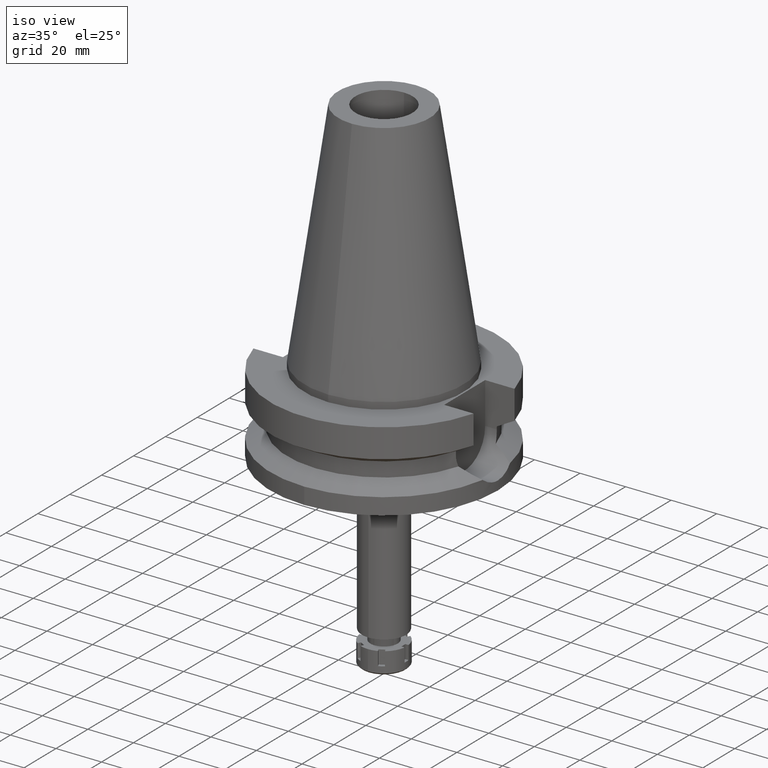
[diagram: clean part render]
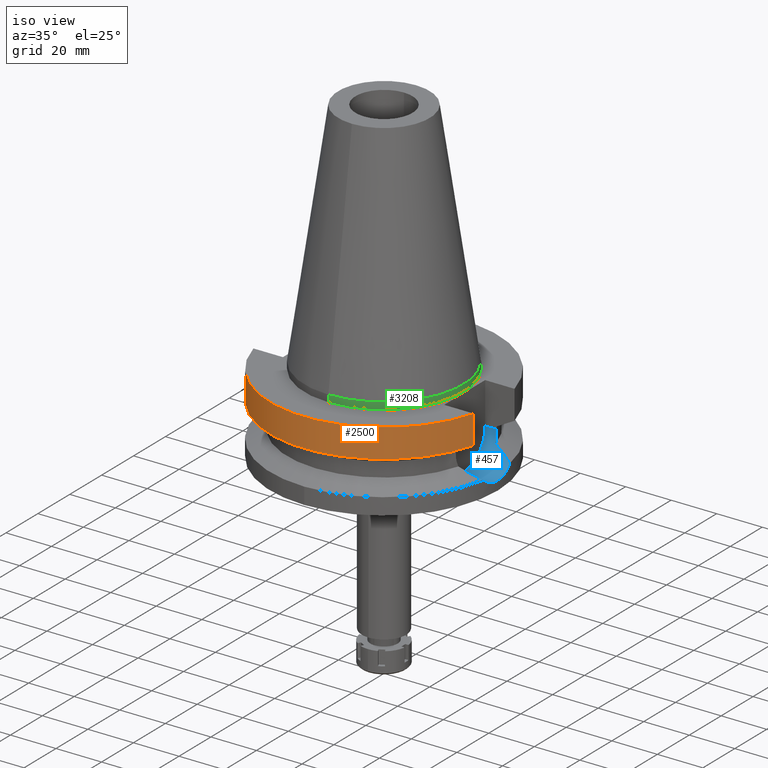
[diagram: same view with three faces highlighted in distinct colors, each labeled with its STEP entity id]
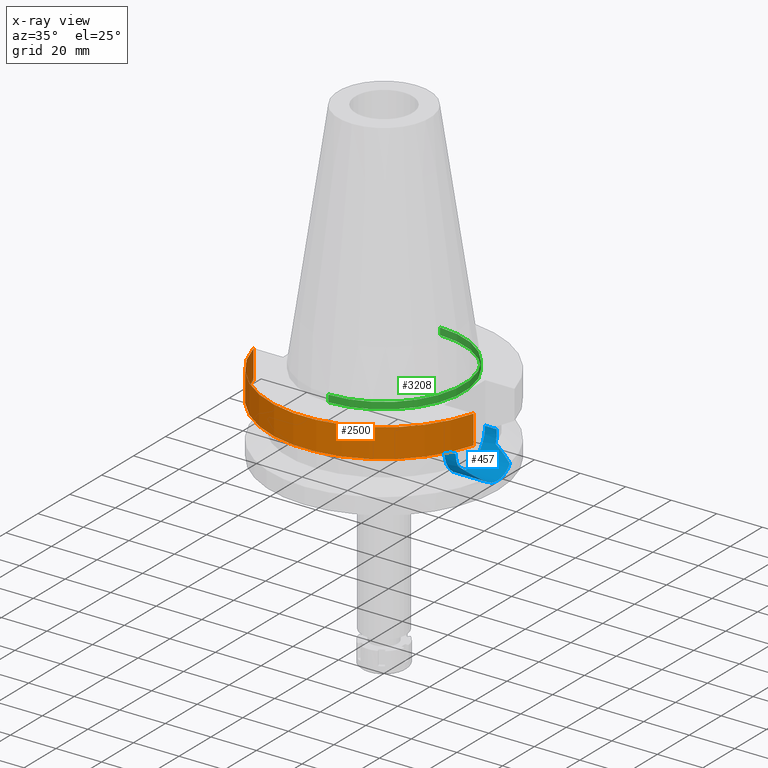
[diagram: x-ray of the same camera — body ghosted, the three highlighted faces saturated]
A machine part, iso view with three faces highlighted in distinct colors.
The next image is the same camera in x-ray (body ghosted, the three faces saturated) — at least one of them is partly hidden behind the body in this view.
Their STEP definitions:

[orange] entity #2500 — the highlighted cylindrical surface (partial cylindrical patch) has radius 50 mm, axis along (0, 0, -1).
#61 = DIRECTION ( 'NONE',  ( 0.0000000000000000000, 0.0000000000000000000, -1.000000000000000000 ) ) ;
#110 = DIRECTION ( 'NONE',  ( 0.0000000000000000000, 0.0000000000000000000, 1.000000000000000000 ) ) ;
#154 = DIRECTION ( 'NONE',  ( 0.0000000000000000000, -1.000000000000000000, 0.0000000000000000000 ) ) ;
#156 = ORIENTED_EDGE ( 'NONE', *, *, #3492, .F. ) ;
#261 = AXIS2_PLACEMENT_3D ( 'NONE', #695, #2713, #154 ) ;
#265 = VECTOR ( 'NONE', #2087, 1000.000000000000114 ) ;
#382 = AXIS2_PLACEMENT_3D ( 'NONE', #1761, #61, #2266 ) ;
#408 = LINE ( 'NONE', #3521, #265 ) ;
#442 = EDGE_LOOP ( 'NONE', ( #156, #3562, #3086, #3106 ) ) ;
#513 = LINE ( 'NONE', #3007, #3203 ) ;
#695 = CARTESIAN_POINT ( 'NONE',  ( 0.0000000000000000000, 2.604088953706999655E-14, 112.6400000000000006 ) ) ;
#818 = CARTESIAN_POINT ( 'NONE',  ( 48.32057015392000210, -12.84999999999999964, -3.000000000000000000 ) ) ;
#1240 = DIRECTION ( 'NONE',  ( 0.0000000000000000000, -1.000000000000000000, 0.0000000000000000000 ) ) ;
#1273 = EDGE_CURVE ( 'NONE', #2715, #2006, #3607, .T. ) ;
#1327 = VERTEX_POINT ( 'NONE', #2423 ) ;
#1574 = FACE_OUTER_BOUND ( 'NONE', #442, .T. ) ;
#1761 = CARTESIAN_POINT ( 'NONE',  ( 0.0000000000000000000, 2.604088953706999655E-14, -3.000000000000000000 ) ) ;
#1816 = EDGE_CURVE ( 'NONE', #1912, #1327, #3672, .T. ) ;
#1912 = VERTEX_POINT ( 'NONE', #3519 ) ;
#2006 = VERTEX_POINT ( 'NONE', #2962 ) ;
#2058 = AXIS2_PLACEMENT_3D ( 'NONE', #3213, #110, #1240 ) ;
#2087 = DIRECTION ( 'NONE',  ( -8.097142945782603154E-08, 3.044811740182851726E-07, 0.9999999999999503730 ) ) ;
#2266 = DIRECTION ( 'NONE',  ( 0.0000000000000000000, -1.000000000000000000, 0.0000000000000000000 ) ) ;
#2423 = CARTESIAN_POINT ( 'NONE',  ( 48.32057015392000210, -12.84999999999999964, -15.66269223573000069 ) ) ;
#2500 = ADVANCED_FACE ( 'NONE', ( #1574 ), #3264, .T. ) ;
#2713 = DIRECTION ( 'NONE',  ( 0.0000000000000000000, 0.0000000000000000000, -1.000000000000000000 ) ) ;
#2715 = VERTEX_POINT ( 'NONE', #818 ) ;
#2728 = DIRECTION ( 'NONE',  ( -8.098196138034604414E-08, -3.045207781488850917E-07, -0.9999999999999503730 ) ) ;
#2962 = CARTESIAN_POINT ( 'NONE',  ( -48.32057015392000210, -12.84999999999999964, -3.000000000000000000 ) ) ;
#3007 = CARTESIAN_POINT ( 'NONE',  ( 48.32057015392000210, -12.84999999999999964, -3.000000000000000000 ) ) ;
#3086 = ORIENTED_EDGE ( 'NONE', *, *, #3144, .F. ) ;
#3106 = ORIENTED_EDGE ( 'NONE', *, *, #1273, .T. ) ;
#3144 = EDGE_CURVE ( 'NONE', #2715, #1327, #513, .T. ) ;
#3203 = VECTOR ( 'NONE', #2728, 1000.000000000000114 ) ;
#3213 = CARTESIAN_POINT ( 'NONE',  ( 0.0000000000000000000, 1.006319759053999930E-14, -15.66269223573000069 ) ) ;
#3264 = CYLINDRICAL_SURFACE ( 'NONE', #261, 50.00000000000000000 ) ;
#3492 = EDGE_CURVE ( 'NONE', #1912, #2006, #408, .T. ) ;
#3519 = CARTESIAN_POINT ( 'NONE',  ( -48.32056912861000342, -12.85000385554000069, -15.66265769811000119 ) ) ;
#3521 = CARTESIAN_POINT ( 'NONE',  ( -48.32056912861000342, -12.85000385554000069, -15.66265769811000119 ) ) ;
#3562 = ORIENTED_EDGE ( 'NONE', *, *, #1816, .T. ) ;
#3607 = CIRCLE ( 'NONE', #382, 50.00000000000000000 ) ;
#3672 = CIRCLE ( 'NONE', #2058, 50.00000000000000000 ) ;

[blue] entity #457 — the highlighted cylindrical surface (edge-blend (fillet) strip) has radius 12.85 mm, axis along (1, 0, 0).
#3 = VERTEX_POINT ( 'NONE', #3648 ) ;
#95 = CARTESIAN_POINT ( 'NONE',  ( 40.60092238249551855, 12.56264134812847999, -23.85247231207546292 ) ) ;
#165 = CARTESIAN_POINT ( 'NONE',  ( 40.73816527417317701, -12.11683760438691948, -25.53409260248793800 ) ) ;
#181 = CARTESIAN_POINT ( 'NONE',  ( 40.59544233053302520, -12.58034074061086294, -23.76884316745783465 ) ) ;
#240 = CARTESIAN_POINT ( 'NONE',  ( 42.56130864140957470, -11.29643904426557377, -27.29251094088017027 ) ) ;
#256 = B_SPLINE_CURVE_WITH_KNOTS ( 'NONE', 3,
 ( #1215, #1236, #2065, #3224, #656, #1806, #901, #1729, #301, #2373, #2008, #3149, #3207, #2026, #2867, #598 ),
 .UNSPECIFIED., .F., .F.,
 ( 4, 2, 2, 1, 1, 1, 1, 2, 2, 4 ),
 ( 0.0000000000000000000, 0.2499999999999733546, 0.3749999999999591438, 0.4374999999999528710, 0.4687499999999489297, 0.4843749999999477640, 0.4921874999999479861, 0.4960937499999479861, 0.4999999999999480416, 1.000000000000000000 ),
 .UNSPECIFIED. ) ;
#263 = CARTESIAN_POINT ( 'NONE',  ( 49.38718097020832687, 7.838190275245236371, -31.37795314336242569 ) ) ;
#301 = CARTESIAN_POINT ( 'NONE',  ( 45.44735433290657056, 10.34016909767419179, -28.77921800161297838 ) ) ;
#325 = CARTESIAN_POINT ( 'NONE',  ( 40.51083188481999997, -12.84999999999999964, -21.14999999999999858 ) ) ;
#362 = DIRECTION ( 'NONE',  ( 1.000000000000000000, -3.336643826789999529E-14, 0.0000000000000000000 ) ) ;
#366 = CARTESIAN_POINT ( 'NONE',  ( 49.71768875269584242, -5.301942241656695920, -32.85649167150086214 ) ) ;
#381 = DIRECTION ( 'NONE',  ( -1.000000000000000000, -3.510427359434999885E-14, 0.0000000000000000000 ) ) ;
#421 = CARTESIAN_POINT ( 'NONE',  ( 40.54024919018342388, 12.75863389424604399, -22.93144383469273251 ) ) ;
#426 = VERTEX_POINT ( 'NONE', #3261 ) ;
#447 = CARTESIAN_POINT ( 'NONE',  ( 40.57495769630776294, -12.64634707790186319, -23.43364513697129325 ) ) ;
#451 = CYLINDRICAL_SURFACE ( 'NONE', #1202, 12.85000000000000320 ) ;
#455 = ORIENTED_EDGE ( 'NONE', *, *, #2313, .F. ) ;
#457 = ADVANCED_FACE ( 'NONE', ( #3580 ), #451, .F. ) ;
#476 = CARTESIAN_POINT ( 'NONE',  ( 40.51818681660353860, -12.82722334132538577, -22.03684727484449368 ) ) ;
#496 = CARTESIAN_POINT ( 'NONE',  ( 40.58662215843323651, -12.60879279856068003, -23.62921822474166689 ) ) ;
#505 = CARTESIAN_POINT ( 'NONE',  ( 49.26250064874000145, -8.556052234130000045, -30.73730776426999967 ) ) ;
#520 = CARTESIAN_POINT ( 'NONE',  ( 45.49671133691751379, -10.32122249077030673, -28.80474141475825789 ) ) ;
#564 = CARTESIAN_POINT ( 'NONE',  ( 49.26250064874000145, 8.556052234130000045, -30.73730776426999967 ) ) ;
#579 = B_SPLINE_CURVE_WITH_KNOTS ( 'NONE', 3,
 ( #2418, #699, #682, #2670, #1832, #366, #943, #2951, #3571, #2649, #1512, #1548, #1535, #2686, #2916, #928, #1257, #2394, #3554, #975 ),
 .UNSPECIFIED., .F., .F.,
 ( 4, 2, 2, 2, 1, 1, 1, 1, 2, 2, 2, 4 ),
 ( 0.0000000000000000000, 0.2499999999999993894, 0.3749999999999998335, 0.4375000000000002776, 0.4687499999999999445, 0.4843749999999998890, 0.4921874999999999445, 0.4960937500000001665, 0.4980468750000001665, 0.5000000000000001110, 0.7500000000000001110, 1.000000000000000000 ),
 .UNSPECIFIED. ) ;
#598 = CARTESIAN_POINT ( 'NONE',  ( 40.85052569294000335, 11.72538061688000077, -26.40718074535000426 ) ) ;
#607 = CARTESIAN_POINT ( 'NONE',  ( 35.39999999999999858, 0.0000000000000000000, -21.14999999999999858 ) ) ;
#632 = CARTESIAN_POINT ( 'NONE',  ( 40.51083188481999287, 12.84999999999999609, -22.03305700494631836 ) ) ;
#646 = ORIENTED_EDGE ( 'NONE', *, *, #1920, .T. ) ;
#650 = ORIENTED_EDGE ( 'NONE', *, *, #2299, .F. ) ;
#656 = CARTESIAN_POINT ( 'NONE',  ( 46.73490844438281044, 9.820097952442347733, -29.44115876246852181 ) ) ;
#663 = CARTESIAN_POINT ( 'NONE',  ( 40.66327158123674224, 12.35978760538091414, -24.67233268305698246 ) ) ;
#682 = CARTESIAN_POINT ( 'NONE',  ( 49.49359291796877613, -7.117121549473845121, -31.87762897366440384 ) ) ;
#699 = CARTESIAN_POINT ( 'NONE',  ( 49.38718395754584378, -7.838173075249422084, -31.37796849324647752 ) ) ;
#766 = ORIENTED_EDGE ( 'NONE', *, *, #3174, .T. ) ;
#780 = CARTESIAN_POINT ( 'NONE',  ( 43.72836978577122835, -10.94021176275651008, -27.89452633777601065 ) ) ;
#791 = CARTESIAN_POINT ( 'NONE',  ( 40.56599387319658234, -12.67510252611517352, -23.26591392763370081 ) ) ;
#804 = CARTESIAN_POINT ( 'NONE',  ( 49.82076548536139882, 4.230355037866759815, -33.28443577065276315 ) ) ;
#862 = CARTESIAN_POINT ( 'NONE',  ( 40.51083188481999997, -12.84999999999999964, -21.14999999999999858 ) ) ;
#901 = CARTESIAN_POINT ( 'NONE',  ( 45.93314006642722092, 10.15221397019499250, -29.02906863876473409 ) ) ;
#928 = CARTESIAN_POINT ( 'NONE',  ( 49.86087221398668134, -3.802572501921722026, -33.45144442938796203 ) ) ;
#943 = CARTESIAN_POINT ( 'NONE',  ( 49.73401167183619265, -5.148629039070319102, -32.92456578347048435 ) ) ;
#945 = CARTESIAN_POINT ( 'NONE',  ( 40.79434512280163005, 11.92111036748542041, -25.97063387069337637 ) ) ;
#975 = CARTESIAN_POINT ( 'NONE',  ( 50.00000000000000000, 1.761287026533999918E-14, -34.00000000000000000 ) ) ;
#982 = CARTESIAN_POINT ( 'NONE',  ( 50.00000000000000000, 1.761287026533999918E-14, -34.00000000000000000 ) ) ;
#1000 = VERTEX_POINT ( 'NONE', #325 ) ;
#1056 = CARTESIAN_POINT ( 'NONE',  ( 49.79506804257010799, 4.522212035697184440, -33.17798325146792138 ) ) ;
#1081 = CARTESIAN_POINT ( 'NONE',  ( 40.85052569294000335, 11.72538061688000077, -26.40718074535000426 ) ) ;
#1095 = CARTESIAN_POINT ( 'NONE',  ( 50.00000000000001421, 0.7411266723672517154, -34.00000000000001421 ) ) ;
#1117 = DIRECTION ( 'NONE',  ( -1.000000000000000000, 0.0000000000000000000, 0.0000000000000000000 ) ) ;
#1186 = B_SPLINE_CURVE_WITH_KNOTS ( 'NONE', 3,
 ( #2875, #945, #1780, #2104, #663, #1201, #3501, #2631, #2672, #2364, #95, #421, #632, #2343 ),
 .UNSPECIFIED., .F., .F.,
 ( 4, 2, 2, 1, 1, 2, 2, 4 ),
 ( 0.0000000000000000000, 0.2499999999999975575, 0.3749999999999956146, 0.4374999999999937272, 0.4687499999999938938, 0.4843749999999932276, 0.4999999999999925615, 1.000000000000000000 ),
 .UNSPECIFIED. ) ;
#1201 = CARTESIAN_POINT ( 'NONE',  ( 40.63719394028306908, 12.44501252797420676, -24.35255093224603229 ) ) ;
#1202 = AXIS2_PLACEMENT_3D ( 'NONE', #2147, #3293, #1592 ) ;
#1215 = CARTESIAN_POINT ( 'NONE',  ( 49.26250064874000145, 8.556052234130000045, -30.73730776426999967 ) ) ;
#1236 = CARTESIAN_POINT ( 'NONE',  ( 48.69047850290822055, 8.884316265751099451, -30.44435334263351223 ) ) ;
#1257 = CARTESIAN_POINT ( 'NONE',  ( 49.91304513374167584, -3.031454505763369056, -33.66148971129195644 ) ) ;
#1329 = VECTOR ( 'NONE', #362, 1000.000000000000000 ) ;
#1343 = CARTESIAN_POINT ( 'NONE',  ( 49.79344695708954305, 4.540054226090951772, -33.17124985379826541 ) ) ;
#1358 = VERTEX_POINT ( 'NONE', #982 ) ;
#1360 = CARTESIAN_POINT ( 'NONE',  ( 44.10449838200392492, -10.81816513385359357, -28.08832101591415764 ) ) ;
#1382 = CARTESIAN_POINT ( 'NONE',  ( 49.79236411020666253, 4.551947763954749426, -33.16675130713447572 ) ) ;
#1422 = CARTESIAN_POINT ( 'NONE',  ( 41.73170073761713894, -11.52074671212583645, -26.86358704686269405 ) ) ;
#1466 = LINE ( 'NONE', #862, #2410 ) ;
#1495 = VERTEX_POINT ( 'NONE', #3377 ) ;
#1512 = CARTESIAN_POINT ( 'NONE',  ( 49.78560365034522306, -4.625461934449639045, -33.13867112587748665 ) ) ;
#1529 = LINE ( 'NONE', #3491, #1329 ) ;
#1535 = CARTESIAN_POINT ( 'NONE',  ( 49.78969068423913313, -4.581164179001000925, -33.15564271947433639 ) ) ;
#1548 = CARTESIAN_POINT ( 'NONE',  ( 49.78847160095052260, -4.594427208010531949, -33.15057897142614252 ) ) ;
#1578 = AXIS2_PLACEMENT_3D ( 'NONE', #607, #1117, #2321 ) ;
#1588 = CARTESIAN_POINT ( 'NONE',  ( 40.65435373193400181, -12.39003581045331792, -24.66356197803972350 ) ) ;
#1592 = DIRECTION ( 'NONE',  ( 0.0000000000000000000, 0.0000000000000000000, -1.000000000000000000 ) ) ;
#1640 = CARTESIAN_POINT ( 'NONE',  ( 40.51083188481999997, -12.84999999999999964, -21.14999999999999858 ) ) ;
#1668 = CARTESIAN_POINT ( 'NONE',  ( 45.47653825677937789, -10.32890838093382335, -28.79436624111400178 ) ) ;
#1673 = EDGE_CURVE ( 'NONE', #1495, #3, #1932, .T. ) ;
#1689 = CARTESIAN_POINT ( 'NONE',  ( 50.00000000000000000, 1.761287026533999918E-14, -34.00000000000000000 ) ) ;
#1729 = CARTESIAN_POINT ( 'NONE',  ( 45.61053032543964747, 10.27793765900630163, -28.86315270907437736 ) ) ;
#1780 = CARTESIAN_POINT ( 'NONE',  ( 40.74530134672995985, 12.08735857047098960, -25.53452462534196954 ) ) ;
#1806 = CARTESIAN_POINT ( 'NONE',  ( 46.20324742599608214, 10.04236694129538066, -29.16792682502047285 ) ) ;
#1832 = CARTESIAN_POINT ( 'NONE',  ( 49.66529355495303832, -5.772644196052398868, -32.63560987239748812 ) ) ;
#1867 = CARTESIAN_POINT ( 'NONE',  ( 40.54944527668359200, -12.72806992640919255, -22.93044913861063705 ) ) ;
#1920 = EDGE_CURVE ( 'NONE', #3297, #1358, #579, .T. ) ;
#1930 = CARTESIAN_POINT ( 'NONE',  ( 40.85052569294000335, -11.72538061688000077, -26.40718074535000426 ) ) ;
#1932 = CIRCLE ( 'NONE', #1578, 12.84999999999999964 ) ;
#1966 = CARTESIAN_POINT ( 'NONE',  ( 45.43415516756414974, -10.34500555249046627, -28.77256805079166924 ) ) ;
#2008 = CARTESIAN_POINT ( 'NONE',  ( 45.33003155597393175, 10.38435624674453450, -28.71886394406518050 ) ) ;
#2026 = CARTESIAN_POINT ( 'NONE',  ( 43.99276756884930961, 10.88338489623259342, -28.03089659096281849 ) ) ;
#2065 = CARTESIAN_POINT ( 'NONE',  ( 48.07283661973739441, 9.204940229188441236, -30.12791399234582457 ) ) ;
#2104 = CARTESIAN_POINT ( 'NONE',  ( 40.68244087372254825, 12.29668167644063281, -24.88705339788334570 ) ) ;
#2146 = ORIENTED_EDGE ( 'NONE', *, *, #2389, .T. ) ;
#2147 = CARTESIAN_POINT ( 'NONE',  ( 35.39999999999999858, 0.0000000000000000000, -21.14999999999999858 ) ) ;
#2171 = EDGE_CURVE ( 'NONE', #426, #3297, #3391, .T. ) ;
#2189 = EDGE_CURVE ( 'NONE', #1358, #2697, #2719, .T. ) ;
#2202 = CARTESIAN_POINT ( 'NONE',  ( 49.79168103802513912, 4.559431696508561949, -33.16391296943704248 ) ) ;
#2214 = CARTESIAN_POINT ( 'NONE',  ( 49.26250064874000145, 8.556052234130000045, -30.73730776426999967 ) ) ;
#2218 = CARTESIAN_POINT ( 'NONE',  ( 49.86954879904999416, 3.608421990874670193, -33.48456028788707073 ) ) ;
#2275 = CARTESIAN_POINT ( 'NONE',  ( 49.79882828145165519, 4.480567247226063365, -33.19359360190872366 ) ) ;
#2299 = EDGE_CURVE ( 'NONE', #1000, #3, #1466, .T. ) ;
#2313 = EDGE_CURVE ( 'NONE', #1495, #2370, #1529, .T. ) ;
#2321 = DIRECTION ( 'NONE',  ( 0.0000000000000000000, 1.000000000000000000, 0.0000000000000000000 ) ) ;
#2343 = CARTESIAN_POINT ( 'NONE',  ( 40.51083188481999997, 12.84999999999999964, -21.14999999999999858 ) ) ;
#2364 = CARTESIAN_POINT ( 'NONE',  ( 40.60256585324605538, 12.55733039764032277, -23.87702712887113421 ) ) ;
#2370 = VERTEX_POINT ( 'NONE', #2642 ) ;
#2373 = CARTESIAN_POINT ( 'NONE',  ( 45.36529855613019180, 10.37112438074890441, -28.73700672778409171 ) ) ;
#2389 = EDGE_CURVE ( 'NONE', #2697, #3318, #256, .T. ) ;
#2394 = CARTESIAN_POINT ( 'NONE',  ( 49.98260902674834938, -1.500717388191710633, -33.93573183423836781 ) ) ;
#2404 = ORIENTED_EDGE ( 'NONE', *, *, #2189, .T. ) ;
#2410 = VECTOR ( 'NONE', #381, 1000.000000000000000 ) ;
#2418 = CARTESIAN_POINT ( 'NONE',  ( 49.26250064874000145, -8.556052234130000045, -30.73730776426999967 ) ) ;
#2479 = CARTESIAN_POINT ( 'NONE',  ( 40.85052569294000335, -11.72538061688000077, -26.40718074535000426 ) ) ;
#2501 = CARTESIAN_POINT ( 'NONE',  ( 49.90868415933501012, 3.033014601740712912, -33.64326496415661438 ) ) ;
#2538 = B_SPLINE_CURVE_WITH_KNOTS ( 'NONE', 3,
 ( #1640, #2782, #476, #3641, #1867, #791, #447, #496, #3310, #181, #3610, #1588, #165, #2479 ),
 .UNSPECIFIED., .F., .F.,
 ( 4, 2, 2, 1, 1, 2, 2, 4 ),
 ( 0.0000000000000000000, 0.2500000000000049960, 0.3750000000000074940, 0.4375000000000087708, 0.4687500000000102141, 0.4843750000000111022, 0.5000000000000121014, 1.000000000000000000 ),
 .UNSPECIFIED. ) ;
#2564 = CARTESIAN_POINT ( 'NONE',  ( 44.91694678732193324, -10.53684964519682232, -28.50652834638415811 ) ) ;
#2631 = CARTESIAN_POINT ( 'NONE',  ( 40.61156370415461936, 12.52823179346066773, -24.00849701691654303 ) ) ;
#2642 = CARTESIAN_POINT ( 'NONE',  ( 40.51083188481999997, 12.84999999999999964, -21.14999999999999858 ) ) ;
#2649 = CARTESIAN_POINT ( 'NONE',  ( 49.77977405740698202, -4.687880468187646699, -33.11448302222295581 ) ) ;
#2670 = CARTESIAN_POINT ( 'NONE',  ( 49.62579483602875996, -6.100868771125520951, -32.46614492104765048 ) ) ;
#2672 = CARTESIAN_POINT ( 'NONE',  ( 40.60613153988730062, 12.54580241304220145, -23.92958009238902761 ) ) ;
#2686 = CARTESIAN_POINT ( 'NONE',  ( 49.79050117567612688, -4.572330526445521848, -33.15900978014269640 ) ) ;
#2697 = VERTEX_POINT ( 'NONE', #2214 ) ;
#2719 = B_SPLINE_CURVE_WITH_KNOTS ( 'NONE', 3,
 ( #1689, #1095, #2830, #3125, #2501, #2218, #3368, #804, #2808, #2275, #1056, #1343, #1382, #2202, #3674, #3104, #3347, #263, #564 ),
 .UNSPECIFIED., .F., .F.,
 ( 4, 2, 2, 1, 1, 1, 1, 1, 2, 2, 2, 4 ),
 ( 0.0000000000000000000, 0.2500000000000335287, 0.3750000000000504041, 0.4375000000000591194, 0.4687500000000634492, 0.4843750000000655032, 0.4921875000000667799, 0.4960937500000672240, 0.4980468750000671130, 0.5000000000000670575, 0.7500000000000335287, 1.000000000000000000 ),
 .UNSPECIFIED. ) ;
#2782 = CARTESIAN_POINT ( 'NONE',  ( 40.51083188481999997, -12.85000000000000142, -21.59153118651267889 ) ) ;
#2791 = CARTESIAN_POINT ( 'NONE',  ( 45.22067860687135976, -10.42525781198407309, -28.66276964885196321 ) ) ;
#2808 = CARTESIAN_POINT ( 'NONE',  ( 49.80625958358908889, 4.397227018187909842, -33.22441102720962647 ) ) ;
#2830 = CARTESIAN_POINT ( 'NONE',  ( 49.98260650653999448, 1.500770204184959988, -33.93572921280508581 ) ) ;
#2863 = ORIENTED_EDGE ( 'NONE', *, *, #2171, .T. ) ;
#2867 = CARTESIAN_POINT ( 'NONE',  ( 42.51529915793576464, 11.33877287449361404, -27.26945334895615503 ) ) ;
#2875 = CARTESIAN_POINT ( 'NONE',  ( 40.85052569294000335, 11.72538061688000077, -26.40718074535000426 ) ) ;
#2898 = CARTESIAN_POINT ( 'NONE',  ( 49.26250064874000145, -8.556052234130000045, -30.73730776426999967 ) ) ;
#2916 = CARTESIAN_POINT ( 'NONE',  ( 49.79076485306589461, -4.569454252982713349, -33.16010525646407814 ) ) ;
#2951 = CARTESIAN_POINT ( 'NONE',  ( 49.75678283038579508, -4.924618298322599230, -33.01917034626406178 ) ) ;
#2991 = ORIENTED_EDGE ( 'NONE', *, *, #3454, .T. ) ;
#3067 = CARTESIAN_POINT ( 'NONE',  ( 45.37042945813323769, -10.36912904241573230, -28.73979270271323117 ) ) ;
#3087 = CARTESIAN_POINT ( 'NONE',  ( 44.64935359852122332, -10.63126117726524988, -28.36882328545124565 ) ) ;
#3102 = EDGE_LOOP ( 'NONE', ( #2146, #2991, #455, #3136, #650, #766, #2863, #646, #2404 ) ) ;
#3104 = CARTESIAN_POINT ( 'NONE',  ( 49.66984506000081012, 5.762278796073894149, -32.66223234248890606 ) ) ;
#3125 = CARTESIAN_POINT ( 'NONE',  ( 49.93042602616001346, 2.648908124987692236, -33.73002211534664241 ) ) ;
#3136 = ORIENTED_EDGE ( 'NONE', *, *, #1673, .T. ) ;
#3149 = CARTESIAN_POINT ( 'NONE',  ( 45.30649794727406743, 10.39316974929979587, -28.70675715008175999 ) ) ;
#3174 = EDGE_CURVE ( 'NONE', #1000, #426, #2538, .T. ) ;
#3207 = CARTESIAN_POINT ( 'NONE',  ( 45.29301032690585060, 10.39821058152996081, -28.69981839095354204 ) ) ;
#3224 = CARTESIAN_POINT ( 'NONE',  ( 47.07794418897253763, 9.668486703874398458, -29.61733168868602561 ) ) ;
#3261 = CARTESIAN_POINT ( 'NONE',  ( 40.85052569294000335, -11.72538061688000077, -26.40718074535000426 ) ) ;
#3293 = DIRECTION ( 'NONE',  ( 1.000000000000000000, 0.0000000000000000000, 0.0000000000000000000 ) ) ;
#3297 = VERTEX_POINT ( 'NONE', #2898 ) ;
#3310 = CARTESIAN_POINT ( 'NONE',  ( 40.59187978545035236, -12.59183662339848375, -23.71299885588245715 ) ) ;
#3318 = VERTEX_POINT ( 'NONE', #1081 ) ;
#3347 = CARTESIAN_POINT ( 'NONE',  ( 49.49358591675412811, 7.117173179060211297, -31.87759042704355039 ) ) ;
#3368 = CARTESIAN_POINT ( 'NONE',  ( 49.84835047889565374, 3.895932941170021646, -33.39806964272672474 ) ) ;
#3377 = CARTESIAN_POINT ( 'NONE',  ( 35.39999999999999858, 12.84999999999999964, -21.14999999999999858 ) ) ;
#3391 = B_SPLINE_CURVE_WITH_KNOTS ( 'NONE', 3,
 ( #1930, #1422, #240, #780, #1360, #3087, #2564, #2791, #3067, #1966, #1668, #520, #3432, #3634, #505 ),
 .UNSPECIFIED., .F., .F.,
 ( 4, 2, 2, 1, 1, 1, 2, 2, 4 ),
 ( 0.0000000000000000000, 0.2500000000000222045, 0.3750000000000330291, 0.4375000000000377476, 0.4687500000000391354, 0.4843750000000395795, 0.4921875000000395239, 0.5000000000000395239, 1.000000000000000000 ),
 .UNSPECIFIED. ) ;
#3432 = CARTESIAN_POINT ( 'NONE',  ( 46.93054201240380507, -9.773052634112877612, -29.54216593971199600 ) ) ;
#3454 = EDGE_CURVE ( 'NONE', #3318, #2370, #1186, .T. ) ;
#3491 = CARTESIAN_POINT ( 'NONE',  ( 35.39999999999999858, 12.84999999999999964, -21.14999999999999858 ) ) ;
#3501 = CARTESIAN_POINT ( 'NONE',  ( 40.62482419424996039, 12.48526689975451021, -24.19323376067254472 ) ) ;
#3554 = CARTESIAN_POINT ( 'NONE',  ( 49.99999999999997158, -0.7411113158218399777, -33.99999999999998579 ) ) ;
#3571 = CARTESIAN_POINT ( 'NONE',  ( 49.76774010462036557, -4.814101204357704056, -33.06459564802763396 ) ) ;
#3580 = FACE_OUTER_BOUND ( 'NONE', #3102, .T. ) ;
#3610 = CARTESIAN_POINT ( 'NONE',  ( 40.59736410791902017, -12.57413583718784800, -23.79845734576946725 ) ) ;
#3634 = CARTESIAN_POINT ( 'NONE',  ( 48.17845213852163511, -9.178150761311695049, -30.18212505560854808 ) ) ;
#3641 = CARTESIAN_POINT ( 'NONE',  ( 40.54025161195416871, -12.75732247067935354, -22.70680363674587809 ) ) ;
#3648 = CARTESIAN_POINT ( 'NONE',  ( 35.39999999999999858, -12.84999999999999964, -21.14999999999999858 ) ) ;
#3674 = CARTESIAN_POINT ( 'NONE',  ( 49.73969925670164116, 5.128026725961783328, -32.94788525410885427 ) ) ;

[green] entity #3208 — the highlighted cylindrical surface (partial cylindrical patch) has radius 34.925 mm, axis along (0, 0, -1).
#36 = VERTEX_POINT ( 'NONE', #1379 ) ;
#124 = EDGE_CURVE ( 'NONE', #2078, #1964, #1803, .T. ) ;
#440 = CARTESIAN_POINT ( 'NONE',  ( 0.0000000000000000000, -34.92499999999999716, -3.000000000000000000 ) ) ;
#523 = CARTESIAN_POINT ( 'NONE',  ( 0.0000000000000000000, 34.92499999999999716, 4.902744876745000264E-13 ) ) ;
#594 = VERTEX_POINT ( 'NONE', #523 ) ;
#686 = CIRCLE ( 'NONE', #2353, 34.92499999999999716 ) ;
#746 = LINE ( 'NONE', #1894, #3015 ) ;
#973 = ORIENTED_EDGE ( 'NONE', *, *, #124, .T. ) ;
#1148 = DIRECTION ( 'NONE',  ( 0.0000000000000000000, -1.000000000000000000, 0.0000000000000000000 ) ) ;
#1153 = DIRECTION ( 'NONE',  ( 0.0000000000000000000, 2.107943449421000052E-13, -1.000000000000000000 ) ) ;
#1313 = CYLINDRICAL_SURFACE ( 'NONE', #2121, 34.92499999999999716 ) ;
#1332 = FACE_OUTER_BOUND ( 'NONE', #2140, .T. ) ;
#1351 = DIRECTION ( 'NONE',  ( 0.0000000000000000000, -1.000000000000000000, 0.0000000000000000000 ) ) ;
#1379 = CARTESIAN_POINT ( 'NONE',  ( 0.0000000000000000000, 34.92499999999999716, -3.000000000000000000 ) ) ;
#1631 = DIRECTION ( 'NONE',  ( 0.0000000000000000000, 0.0000000000000000000, -1.000000000000000000 ) ) ;
#1637 = AXIS2_PLACEMENT_3D ( 'NONE', #3049, #1631, #2773 ) ;
#1803 = LINE ( 'NONE', #2866, #3180 ) ;
#1805 = CARTESIAN_POINT ( 'NONE',  ( 0.0000000000000000000, -34.92499999999999716, 4.902744876745000264E-13 ) ) ;
#1894 = CARTESIAN_POINT ( 'NONE',  ( 0.0000000000000000000, 34.92499999999999716, 4.902744876745000264E-13 ) ) ;
#1964 = VERTEX_POINT ( 'NONE', #440 ) ;
#2078 = VERTEX_POINT ( 'NONE', #1805 ) ;
#2121 = AXIS2_PLACEMENT_3D ( 'NONE', #2510, #3325, #1351 ) ;
#2140 = EDGE_LOOP ( 'NONE', ( #3142, #973, #2917, #2173 ) ) ;
#2173 = ORIENTED_EDGE ( 'NONE', *, *, #2563, .F. ) ;
#2250 = EDGE_CURVE ( 'NONE', #594, #2078, #3196, .T. ) ;
#2292 = DIRECTION ( 'NONE',  ( 0.0000000000000000000, 0.0000000000000000000, 1.000000000000000000 ) ) ;
#2353 = AXIS2_PLACEMENT_3D ( 'NONE', #3427, #2292, #1148 ) ;
#2510 = CARTESIAN_POINT ( 'NONE',  ( 0.0000000000000000000, 2.604088953706999655E-14, 112.6400000000000006 ) ) ;
#2563 = EDGE_CURVE ( 'NONE', #594, #36, #746, .T. ) ;
#2773 = DIRECTION ( 'NONE',  ( 0.0000000000000000000, 1.000000000000000000, 0.0000000000000000000 ) ) ;
#2866 = CARTESIAN_POINT ( 'NONE',  ( 0.0000000000000000000, -34.92499999999999716, 4.902744876745000264E-13 ) ) ;
#2878 = EDGE_CURVE ( 'NONE', #1964, #36, #686, .T. ) ;
#2917 = ORIENTED_EDGE ( 'NONE', *, *, #2878, .T. ) ;
#2963 = DIRECTION ( 'NONE',  ( 0.0000000000000000000, -2.131628207279999907E-13, -1.000000000000000000 ) ) ;
#3015 = VECTOR ( 'NONE', #2963, 1000.000000000000000 ) ;
#3049 = CARTESIAN_POINT ( 'NONE',  ( 0.0000000000000000000, 1.847992019912999597E-14, 3.979039320256999774E-13 ) ) ;
#3142 = ORIENTED_EDGE ( 'NONE', *, *, #2250, .T. ) ;
#3180 = VECTOR ( 'NONE', #1153, 1000.000000000000000 ) ;
#3196 = CIRCLE ( 'NONE', #1637, 34.92499999999999716 ) ;
#3208 = ADVANCED_FACE ( 'NONE', ( #1332 ), #1313, .T. ) ;
#3325 = DIRECTION ( 'NONE',  ( 0.0000000000000000000, 0.0000000000000000000, -1.000000000000000000 ) ) ;
#3427 = CARTESIAN_POINT ( 'NONE',  ( 0.0000000000000000000, 2.604088953706999655E-14, -3.000000000000000000 ) ) ;